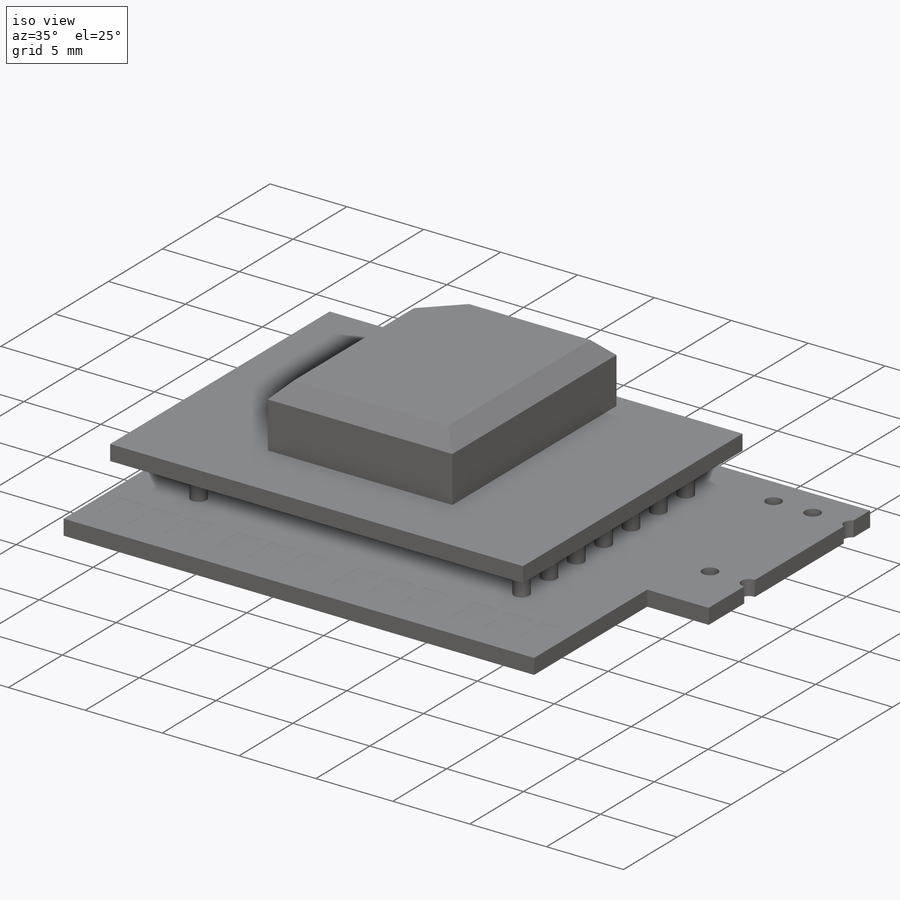
[diagram: iso view]
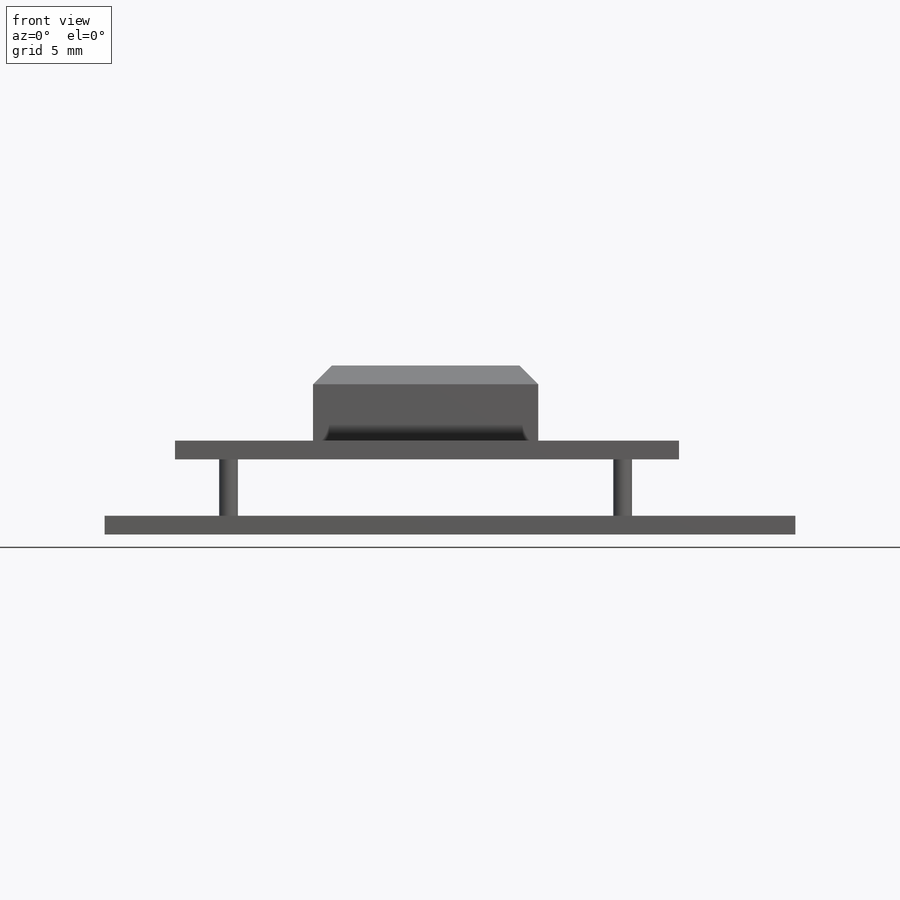
[diagram: front view]
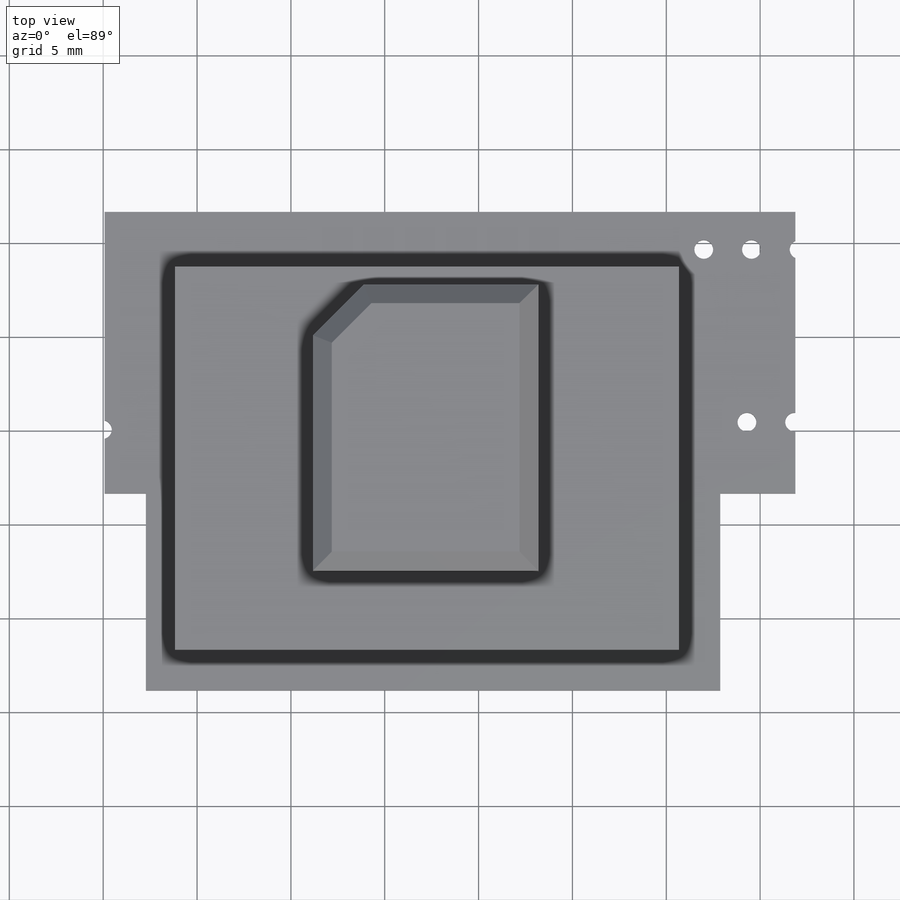
[diagram: top view]
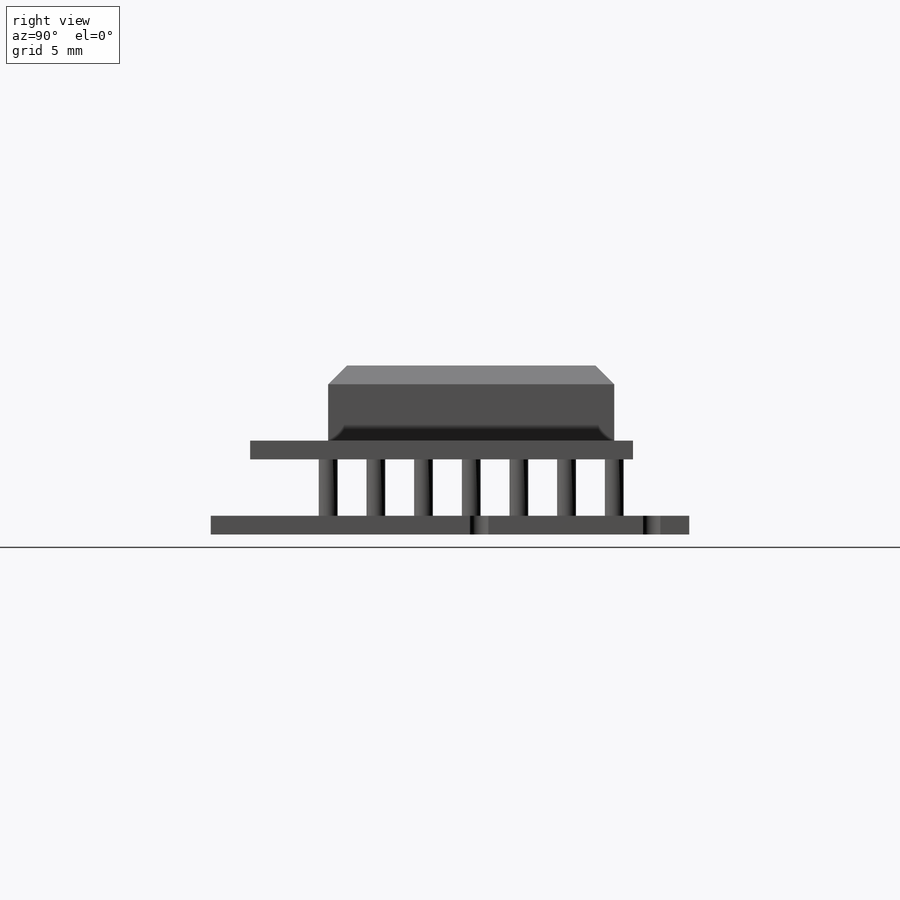
[diagram: right view]
SOLIDWORKS PART (.sldprt)
format: sldprt  version: not decoded by parser v0  size: 959,488 bytes
history: native  units: mm
features: sketch x16, extrude x8, cut_extrude x8, plane x3, mirror x2, material x1, chamfer x1 (+10 scaffold rows collapsed)
feature tree (49):
  scaffold x10  (default folders/planes/origin — collapsed)
  material  "Material <not specified>"
  plane  "Ön Düzlem"
  plane  "Üst Düzlem"
  plane  "Sağ Düzlem"
  sketch  "Sketch1"  dims[D1=51.0mm D2=15.0mm D3=10.2mm D4=10.5mm D5=10.2mm D6=10.5mm]
  extrude  "Boss-Extrude1"  Depth=1mm
  sketch  "Sketch2"  dims[c1.D1=~1.220535mm c1.D3=~0.391907mm c1.D4=~1.70172mm c1.D6=~1.906861mm c1.D7=~1.043552mm c1.D9=~0.658252mm c1.D11=~1.092723mm c1.D13=0.4mm c1.D15=~1.01108mm c1.D17=~0.538477mm c2.D1=4.0mm c2.D2=4.5mm c2.D3=2.54mm c2.D4=4.25mm c2.D5=3.25mm c2.D6=2.54mm c2.D7=2.8mm c2.D8=3.4mm c2.D9=2.54mm c2.D10=2.54mm c2.D11=3.7mm c2.D12=3.8mm c2.D13=2.54mm c2.D14=2.54mm c2.D15=2.0mm c2.D16=6.0mm c2.D17=2.54mm c2.D18=2.54mm]
  cut_extrude  "Cut-Extrude1"  Depth=1mm
  sketch  "Sketch3"  dims[D1=1.6mm D2=2.4mm D3=1.0mm D4=1.5mm D5=0.6mm D6=1.6mm D7=0.6mm D8=1.6mm D9=1.6mm D10=0.6mm D11=0.6mm D12=1.6mm D13=1.6mm D14=1.6mm D15=1.8mm D16=0.6mm D17=0.6mm D18=1.6mm D19=1.6mm D20=1.6mm D21=1.6mm D22=1.6mm D23=0.6mm D24=1.6mm D25=0.6mm D26=1.6mm]
  cut_extrude  "Cut-Extrude2"  Depth=0.005mm
  sketch  "Sketch4"
  cut_extrude  "Cut-Extrude3"  Depth=0.5mm
  mirror  "Mirror1"
  sketch  "Sketch5"
  extrude  "Boss-Extrude2"  Depth=5mm
  sketch  "Sketch6"  dims[c1.D1=2.4mm c1.D2=1.6mm c1.D3=0.6mm c1.D4=1.6mm c1.D5=0.6mm c1.D6=1.6mm c1.D7=0.6mm c1.D8=1.6mm c1.D9=0.6mm c1.D10=1.6mm c1.D11=0.6mm c1.D12=1.6mm c1.D13=0.6mm c1.D14=1.6mm c1.D15=19.6mm c1.D16=1.6mm c2.D13=2.4mm c2.D14=4.24mm c2.D16=0.64mm c2.D17=1.6mm c2.D18=2.4mm c2.D19=3.0mm c2.D20=0.6mm c2.D21=1.6mm c2.D22=0.6mm c2.D23=1.6mm c2.D24=0.6mm c2.D25=0.6mm c2.D26=0.6mm c2.D27=1.6mm c2.D28=1.6mm c2.D29=1.6mm]
  cut_extrude  "Cut-Extrude9"  Depth=2mm
  sketch  "Sketch7"
  extrude  "Boss-Extrude3"  Depth=0.9mm
  sketch  "Sketch8"
  cut_extrude  "Cut-Extrude10"  Depth=0.5mm
  mirror  "Mirror2"
  sketch  "Sketch9"  dims[D1=1.6mm D2=2.4mm D3=10.0mm D4=10.0mm D5=0.6mm D6=0.6mm D7=0.6mm D8=0.6mm D9=0.6mm D10=1.6mm D11=1.6mm D12=1.6mm D13=1.6mm D14=1.6mm]
  cut_extrude  "Cut-Extrude11"  Depth=0.1mm
  sketch  "Sketch11"
  extrude  "Boss-Extrude4"  Depth=0.5mm
  sketch  "Sketch12"  dims[c1.D1=~1.176884mm c1.D3=~0.540515mm c1.D9=~0.50344mm c1.D10=~0.621332mm c2.D1=4.0mm c2.D2=15.4mm c2.D3=2.54mm c2.D4=2.54mm c2.D5=2.54mm c2.D6=2.54mm c2.D7=2.54mm c2.D8=2.54mm c2.D9=21.0mm]
  extrude  "Boss-Extrude5"  Depth=3mm
  sketch  "Sketch13"  dims[c1.D2=1.0mm c1.D1=1.5mm c2.D2=1.5mm c2.D3=1.0mm c2.D4=1.0mm]
  extrude  "Boss-Extrude6"  Depth=1mm
  sketch  "Sketch14"  dims[c1.D1=12.0mm c1.D2=16.0mm c1.D3=1.0mm c1.D4=0.24mm c2.D2=1.0mm c2.D4=6.0mm]
  extrude  "Boss-Extrude7"  Depth=4mm
  sketch  "Sketch15"
  cut_extrude  "Cut-Extrude12"  [1 undecoded]
  chamfer  "Chamfer1"  Distance=1mm Angle=45deg
  sketch  "Sketch16"
  extrude  "Boss-Extrude8"  [1 undecoded]
  sketch  "Sketch17"  dims[D1=2.2mm D2=4.0mm]
  cut_extrude  "Cut-Extrude13"  Depth=10mm
decode coverage: 24 of 35 modeling features carry decoded parameters
note: ~ marks probable driven/reference dimensions
note: 2 parameter values undecoded
note: suppression state not decoded; provenance and decode notes live in map.json
